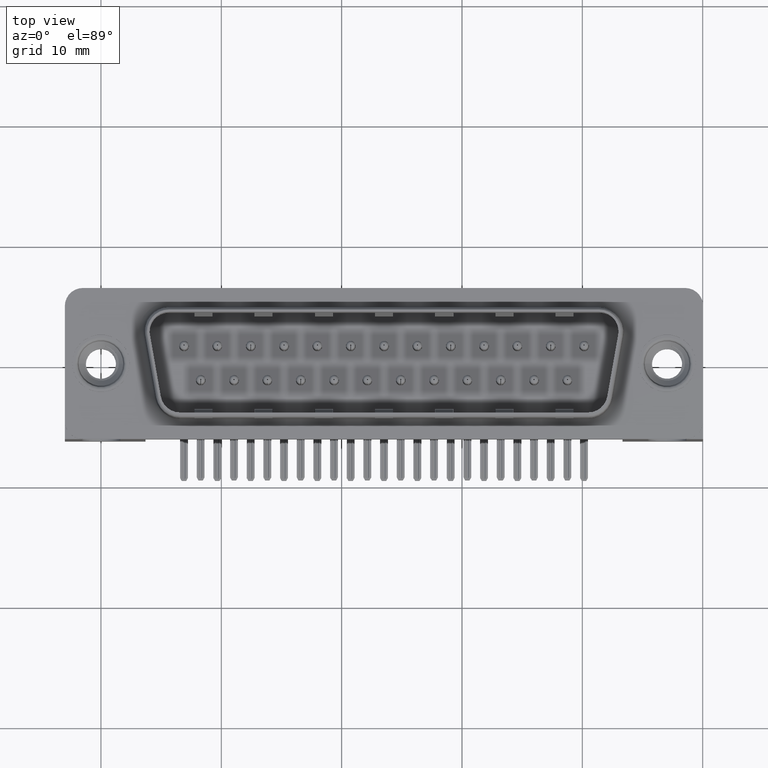
[diagram: clean part render]
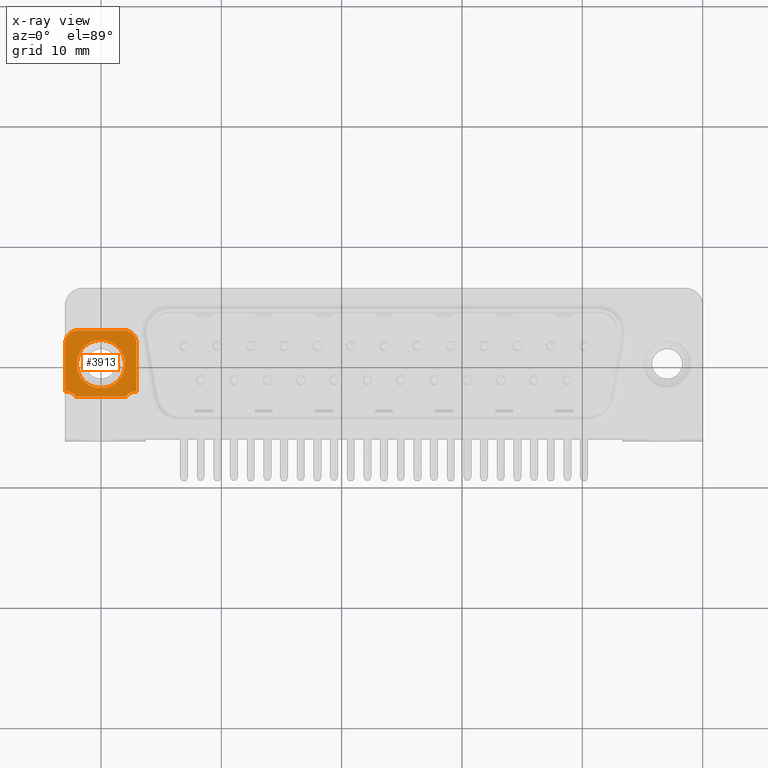
[diagram: x-ray — body ghosted, one internal face saturated and labeled with its STEP entity id]
A machine part, top view, then the same camera in x-ray: the body is ghosted and one INTERNAL B-rep face — a face not visible from any outside direction — is saturated and labeled: STEP entity #3913.
In plain terms, the highlighted planar face has unit normal (0, 0, 1).
Its self-contained STEP definition (entity closure, byte-faithful):
#498 = CIRCLE ( 'NONE', #10301, 2.000000000000000000 ) ;
#500 = CARTESIAN_POINT ( 'NONE',  ( 2.950000000001000300, 0.0000000000000000000, -2.500000000000000000 ) ) ;
#736 = ORIENTED_EDGE ( 'NONE', *, *, #15096, .F. ) ;
#996 = CIRCLE ( 'NONE', #11056, 1.000000000000000000 ) ;
#1173 = DIRECTION ( 'NONE',  ( 0.0000000000000000000, -1.000000000000000000, 0.0000000000000000000 ) ) ;
#1217 = DIRECTION ( 'NONE',  ( 0.0000000000000000000, -1.000000000000000000, 0.0000000000000000000 ) ) ;
#1321 = FACE_BOUND ( 'NONE', #4711, .T. ) ;
#1405 = CARTESIAN_POINT ( 'NONE',  ( 2.149999999999999000, -2.600000000000000500, -2.500000000000000000 ) ) ;
#1762 = AXIS2_PLACEMENT_3D ( 'NONE', #4358, #16542, #6123 ) ;
#2210 = ORIENTED_EDGE ( 'NONE', *, *, #14901, .F. ) ;
#2455 = ORIENTED_EDGE ( 'NONE', *, *, #13489, .T. ) ;
#2563 = DIRECTION ( 'NONE',  ( -0.0000000000000000000, -0.0000000000000000000, -1.000000000000000000 ) ) ;
#3685 = CARTESIAN_POINT ( 'NONE',  ( 2.149999999999999000, -2.699749197498457800, -2.500021533221966000 ) ) ;
#3718 = VECTOR ( 'NONE', #9161, 1000.000000000000000 ) ;
#3901 = ORIENTED_EDGE ( 'NONE', *, *, #15307, .F. ) ;
#3913 = ADVANCED_FACE ( 'NONE', ( #19214, #1321 ), #21234, .T. ) ;
#3988 = CARTESIAN_POINT ( 'NONE',  ( -2.950000000000001100, -2.299999999999871500, -2.500000000000000000 ) ) ;
#3994 = VERTEX_POINT ( 'NONE', #21593 ) ;
#4358 = CARTESIAN_POINT ( 'NONE',  ( 0.0000000000000000000, 0.0000000000000000000, -2.500000000000000000 ) ) ;
#4711 = EDGE_LOOP ( 'NONE', ( #16107, #2455 ) ) ;
#5538 = CARTESIAN_POINT ( 'NONE',  ( -2.149999999999999000, -3.200000000000000200, -2.500000000000000000 ) ) ;
#5989 = CARTESIAN_POINT ( 'NONE',  ( -2.867470740750000000, -3.296588642001999900, -2.500000000000000000 ) ) ;
#6123 = DIRECTION ( 'NONE',  ( 1.000000000000000000, 0.0000000000000000000, 0.0000000000000000000 ) ) ;
#6135 = CARTESIAN_POINT ( 'NONE',  ( -1.950000000000000400, 1.800000000000000300, -2.500000000000000000 ) ) ;
#6509 = VERTEX_POINT ( 'NONE', #18346 ) ;
#6899 = B_SPLINE_CURVE_WITH_KNOTS ( 'NONE', 3,
 ( #3685, #14183, #17601, #7243 ),
 .UNSPECIFIED., .F., .F.,
 ( 4, 4 ),
 ( 0.0000000000000000000, 1.000000000000000000 ),
 .UNSPECIFIED. ) ;
#7243 = CARTESIAN_POINT ( 'NONE',  ( -2.149999999999999000, -2.699749197498457800, -2.500021533221965500 ) ) ;
#7358 = DIRECTION ( 'NONE',  ( -0.0000000000000000000, 1.000000000000000000, -0.0000000000000000000 ) ) ;
#7386 = AXIS2_PLACEMENT_3D ( 'NONE', #21946, #11730, #1217 ) ;
#7754 = DIRECTION ( 'NONE',  ( 0.0000000000000000000, -1.000000000000000000, 0.0000000000000000000 ) ) ;
#7767 = ORIENTED_EDGE ( 'NONE', *, *, #14527, .F. ) ;
#7827 = CARTESIAN_POINT ( 'NONE',  ( 2.150000000000505700, -2.600000000000492600, -2.500000000000000000 ) ) ;
#7871 = LINE ( 'NONE', #17710, #13079 ) ;
#7909 = DIRECTION ( 'NONE',  ( 0.0000000000000000000, 1.000000000000000000, 0.0000000000000000000 ) ) ;
#7930 = AXIS2_PLACEMENT_3D ( 'NONE', #9473, #19710, #19649 ) ;
#8138 = LINE ( 'NONE', #1405, #16826 ) ;
#9161 = DIRECTION ( 'NONE',  ( 0.0000000000000000000, 1.000000000000000000, 0.0000000000000000000 ) ) ;
#9290 = DIRECTION ( 'NONE',  ( 0.0000000000000000000, -1.000000000000000000, 0.0000000000000000000 ) ) ;
#9473 = CARTESIAN_POINT ( 'NONE',  ( 12.49499999999999900, 0.0000000000000000000, -2.500000000000000000 ) ) ;
#9513 = VERTEX_POINT ( 'NONE', #3988 ) ;
#9542 = CARTESIAN_POINT ( 'NONE',  ( 2.449293598294706400E-016, 2.000000000000000000, -2.500000000000000000 ) ) ;
#10293 = VERTEX_POINT ( 'NONE', #18199 ) ;
#10301 = AXIS2_PLACEMENT_3D ( 'NONE', #13074, #2563, #14796 ) ;
#10329 = ORIENTED_EDGE ( 'NONE', *, *, #15128, .F. ) ;
#10643 = VERTEX_POINT ( 'NONE', #10729 ) ;
#10729 = CARTESIAN_POINT ( 'NONE',  ( -1.950000020320003000, 2.799999999999999800, -2.500000000000000000 ) ) ;
#10922 = CARTESIAN_POINT ( 'NONE',  ( -2.950000000000001100, 1.800000000000000000, -2.500000000000000000 ) ) ;
#11056 = AXIS2_PLACEMENT_3D ( 'NONE', #21890, #11681, #1173 ) ;
#11579 = CARTESIAN_POINT ( 'NONE',  ( 12.49499999999999900, 2.799999999999999800, -2.500000000000000000 ) ) ;
#11681 = DIRECTION ( 'NONE',  ( 0.0000000000000000000, 0.0000000000000000000, 1.000000000000000000 ) ) ;
#11730 = DIRECTION ( 'NONE',  ( -0.0000000000000000000, -0.0000000000000000000, -1.000000000000000000 ) ) ;
#11974 = VERTEX_POINT ( 'NONE', #14060 ) ;
#12211 = EDGE_CURVE ( 'NONE', #14710, #21778, #498, .T. ) ;
#13074 = CARTESIAN_POINT ( 'NONE',  ( 0.0000000000000000000, 0.0000000000000000000, -2.500000000000000000 ) ) ;
#13079 = VECTOR ( 'NONE', #7358, 1000.000000000000000 ) ;
#13489 = EDGE_CURVE ( 'NONE', #21778, #14710, #14159, .T. ) ;
#13663 = AXIS2_PLACEMENT_3D ( 'NONE', #5989, #18083, #7754 ) ;
#14060 = CARTESIAN_POINT ( 'NONE',  ( 1.950000030607496000, 2.799999999999999400, -2.500000000000000000 ) ) ;
#14074 = CARTESIAN_POINT ( 'NONE',  ( -2.149999999999999000, -2.699749197498457800, -2.500021533221965500 ) ) ;
#14159 = CIRCLE ( 'NONE', #1762, 2.000000000000000000 ) ;
#14183 = CARTESIAN_POINT ( 'NONE',  ( 0.7166666666666657900, -2.699749211688915900, -2.500084843656781100 ) ) ;
#14395 = VECTOR ( 'NONE', #21792, 1000.000000000000000 ) ;
#14421 = EDGE_CURVE ( 'NONE', #9513, #14992, #7871, .T. ) ;
#14527 = EDGE_CURVE ( 'NONE', #10293, #6509, #15484, .T. ) ;
#14560 = EDGE_CURVE ( 'NONE', #6509, #20984, #996, .T. ) ;
#14678 = EDGE_CURVE ( 'NONE', #20984, #3994, #8138, .T. ) ;
#14710 = VERTEX_POINT ( 'NONE', #22190 ) ;
#14796 = DIRECTION ( 'NONE',  ( 1.000000000000000000, 0.0000000000000000000, 0.0000000000000000000 ) ) ;
#14901 = EDGE_CURVE ( 'NONE', #3994, #19023, #6899, .T. ) ;
#14944 = VECTOR ( 'NONE', #9290, 1000.000000000000000 ) ;
#14970 = EDGE_CURVE ( 'NONE', #19023, #18868, #17599, .T. ) ;
#14992 = VERTEX_POINT ( 'NONE', #10922 ) ;
#15096 = EDGE_CURVE ( 'NONE', #18868, #9513, #20469, .T. ) ;
#15128 = EDGE_CURVE ( 'NONE', #14992, #10643, #19944, .T. ) ;
#15229 = EDGE_CURVE ( 'NONE', #10643, #11974, #15464, .T. ) ;
#15307 = EDGE_CURVE ( 'NONE', #11974, #10293, #18357, .T. ) ;
#15464 = LINE ( 'NONE', #11579, #14395 ) ;
#15484 = LINE ( 'NONE', #500, #14944 ) ;
#16107 = ORIENTED_EDGE ( 'NONE', *, *, #12211, .T. ) ;
#16542 = DIRECTION ( 'NONE',  ( -0.0000000000000000000, -0.0000000000000000000, -1.000000000000000000 ) ) ;
#16774 = CARTESIAN_POINT ( 'NONE',  ( -2.149999999999610400, -2.599999999999359300, -2.500000000000000000 ) ) ;
#16826 = VECTOR ( 'NONE', #18692, 1000.000000000000000 ) ;
#17043 = EDGE_LOOP ( 'NONE', ( #20913, #21502, #7767, #3901, #19941, #10329, #19716, #736, #21368, #2210 ) ) ;
#17102 = AXIS2_PLACEMENT_3D ( 'NONE', #6135, #18226, #7909 ) ;
#17599 = LINE ( 'NONE', #5538, #3718 ) ;
#17601 = CARTESIAN_POINT ( 'NONE',  ( -0.7166666666666675600, -2.699749211688915900, -2.500084843656781100 ) ) ;
#17710 = CARTESIAN_POINT ( 'NONE',  ( -2.950000000000001100, 0.0000000000000000000, -2.500000000000000000 ) ) ;
#18083 = DIRECTION ( 'NONE',  ( 0.0000000000000000000, 0.0000000000000000000, 1.000000000000000000 ) ) ;
#18199 = CARTESIAN_POINT ( 'NONE',  ( 2.950000000000494000, 1.800000000000000300, -2.500000000000000000 ) ) ;
#18226 = DIRECTION ( 'NONE',  ( 0.0000000000000000000, 0.0000000000000000000, -1.000000000000000000 ) ) ;
#18346 = CARTESIAN_POINT ( 'NONE',  ( 2.950000000001000300, -2.299999999999895000, -2.500000000000000000 ) ) ;
#18357 = CIRCLE ( 'NONE', #7386, 1.000000000000000000 ) ;
#18692 = DIRECTION ( 'NONE',  ( 0.0000000000000000000, -1.000000000000000000, 0.0000000000000000000 ) ) ;
#18868 = VERTEX_POINT ( 'NONE', #16774 ) ;
#19023 = VERTEX_POINT ( 'NONE', #14074 ) ;
#19214 = FACE_OUTER_BOUND ( 'NONE', #17043, .T. ) ;
#19649 = DIRECTION ( 'NONE',  ( 0.0000000000000000000, -1.000000000000000000, 0.0000000000000000000 ) ) ;
#19710 = DIRECTION ( 'NONE',  ( 0.0000000000000000000, 0.0000000000000000000, 1.000000000000000000 ) ) ;
#19716 = ORIENTED_EDGE ( 'NONE', *, *, #14421, .F. ) ;
#19941 = ORIENTED_EDGE ( 'NONE', *, *, #15229, .F. ) ;
#19944 = CIRCLE ( 'NONE', #17102, 1.000000000000000200 ) ;
#20469 = CIRCLE ( 'NONE', #13663, 1.000000000000000000 ) ;
#20913 = ORIENTED_EDGE ( 'NONE', *, *, #14678, .F. ) ;
#20984 = VERTEX_POINT ( 'NONE', #7827 ) ;
#21234 = PLANE ( 'NONE',  #7930 ) ;
#21368 = ORIENTED_EDGE ( 'NONE', *, *, #14970, .F. ) ;
#21502 = ORIENTED_EDGE ( 'NONE', *, *, #14560, .F. ) ;
#21593 = CARTESIAN_POINT ( 'NONE',  ( 2.149999999999999000, -2.699749197498457800, -2.500021533221966000 ) ) ;
#21778 = VERTEX_POINT ( 'NONE', #9542 ) ;
#21792 = DIRECTION ( 'NONE',  ( 1.000000000000000000, 0.0000000000000000000, 0.0000000000000000000 ) ) ;
#21890 = CARTESIAN_POINT ( 'NONE',  ( 2.867470740751998400, -3.296588642001999900, -2.500000000000000000 ) ) ;
#21946 = CARTESIAN_POINT ( 'NONE',  ( 1.950000000000000400, 1.800000000000000300, -2.500000000000000000 ) ) ;
#22190 = CARTESIAN_POINT ( 'NONE',  ( 0.0000000000000000000, -2.000000000000000000, -2.500000000000000000 ) ) ;